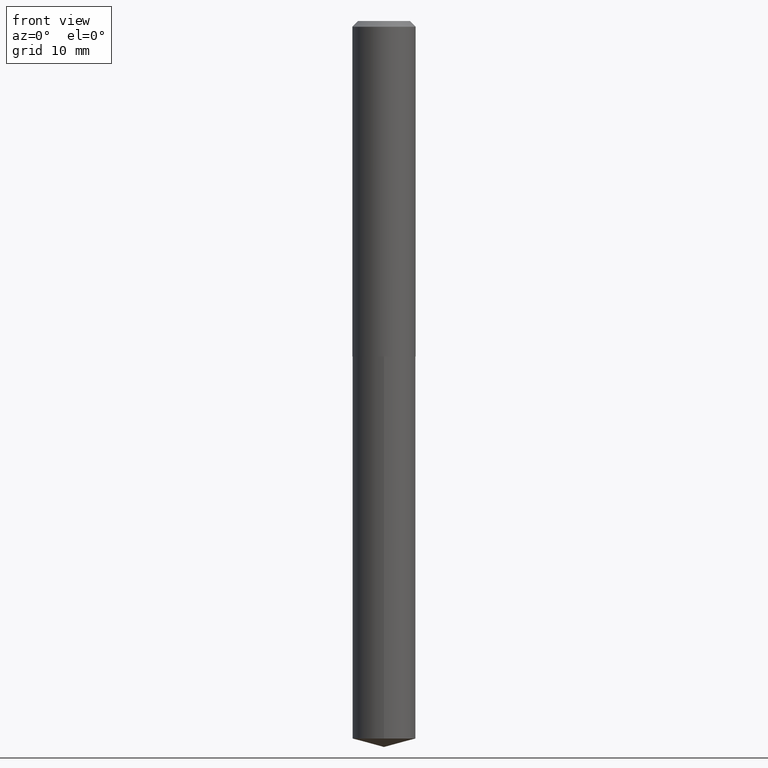
[diagram: clean part render]
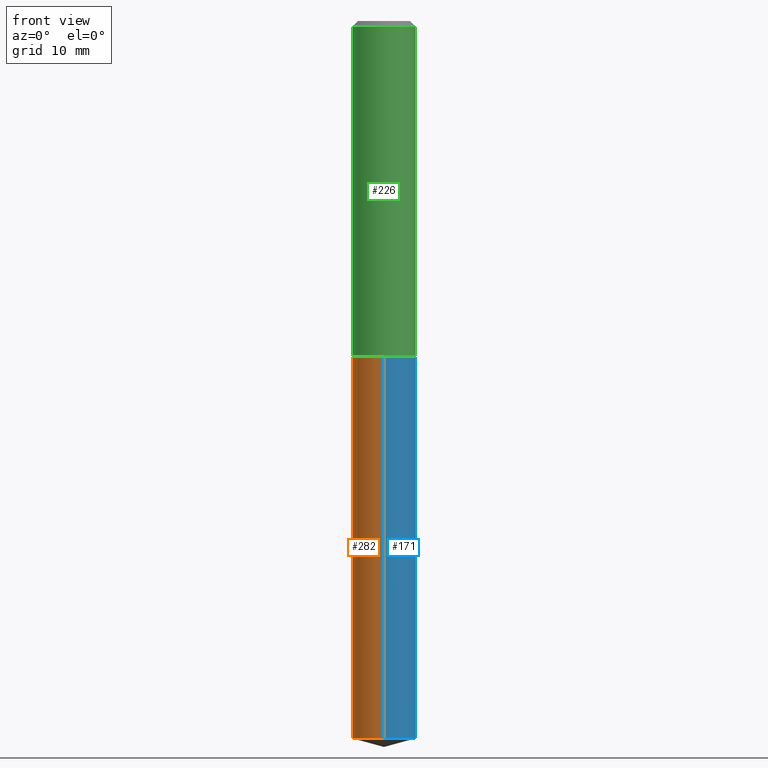
[diagram: same view with three faces highlighted in distinct colors, each labeled with its STEP entity id]
A machine part, front view with three faces highlighted in distinct colors.
Their STEP definitions:

[orange] entity #282 — the highlighted cylindrical surface (edge-blend (fillet) strip) has radius 4.4196 mm, axis along (-0, 0, 1).
#5 = CIRCLE ( 'NONE', #384, 0.1739999999999999880 ) ;
#6 = CARTESIAN_POINT ( 'NONE',  ( 1.236344360222670676E-15, 0.1739999999999935210, -1.848000000000000309 ) ) ;
#7 = LINE ( 'NONE', #128, #267 ) ;
#22 = CARTESIAN_POINT ( 'NONE',  ( 4.519226353830132171E-29, -6.452257514182132781E-15, -1.847999999999999865 ) ) ;
#29 = DIRECTION ( 'NONE',  ( -2.445482700647825692E-29, 3.491461441181750985E-15, 1.000000000000000000 ) ) ;
#55 = CARTESIAN_POINT ( 'NONE',  ( -1.215035505917364906E-15, -0.1740000000000064273, -1.847999999999999199 ) ) ;
#62 = VERTEX_POINT ( 'NONE', #362 ) ;
#64 = DIRECTION ( 'NONE',  ( -2.445482700647825692E-29, 3.491461441181750985E-15, 1.000000000000000000 ) ) ;
#74 = EDGE_LOOP ( 'NONE', ( #361, #185, #200, #327 ) ) ;
#79 = AXIS2_PLACEMENT_3D ( 'NONE', #22, #29, #353 ) ;
#91 = EDGE_CURVE ( 'NONE', #62, #358, #7, .T. ) ;
#100 = CARTESIAN_POINT ( 'NONE',  ( 9.667888995658995842E-29, -1.380309957200424853E-14, -3.953376840516985347 ) ) ;
#110 = LINE ( 'NONE', #298, #354 ) ;
#115 = CARTESIAN_POINT ( 'NONE',  ( -1.215035505917313236E-15, -0.1740000000000137270, -3.953376840516984903 ) ) ;
#128 = CARTESIAN_POINT ( 'NONE',  ( 1.236344360222619006E-15, 0.1739999999999935210, -1.848000000000000309 ) ) ;
#140 = DIRECTION ( 'NONE',  ( -2.445482700647825972E-29, 3.491461441181750985E-15, 1.000000000000000000 ) ) ;
#153 = FACE_OUTER_BOUND ( 'NONE', #74, .T. ) ;
#185 = ORIENTED_EDGE ( 'NONE', *, *, #359, .T. ) ;
#200 = ORIENTED_EDGE ( 'NONE', *, *, #202, .T. ) ;
#202 = EDGE_CURVE ( 'NONE', #218, #288, #110, .T. ) ;
#218 = VERTEX_POINT ( 'NONE', #115 ) ;
#241 = CYLINDRICAL_SURFACE ( 'NONE', #79, 0.1739999999999999880 ) ;
#258 = AXIS2_PLACEMENT_3D ( 'NONE', #100, #64, #339 ) ;
#267 = VECTOR ( 'NONE', #363, 39.37007874015748143 ) ;
#270 = EDGE_CURVE ( 'NONE', #358, #288, #5, .T. ) ;
#282 = ADVANCED_FACE ( 'NONE', ( #153 ), #241, .T. ) ;
#288 = VERTEX_POINT ( 'NONE', #55 ) ;
#298 = CARTESIAN_POINT ( 'NONE',  ( -1.215035505917364906E-15, -0.1740000000000064273, -1.847999999999999199 ) ) ;
#307 = DIRECTION ( 'NONE',  ( -2.445482700647825692E-29, 3.491461441181750985E-15, 1.000000000000000000 ) ) ;
#327 = ORIENTED_EDGE ( 'NONE', *, *, #270, .F. ) ;
#339 = DIRECTION ( 'NONE',  ( -6.982962677686265133E-15, -1.000000000000000000, 3.140055165131337128E-15 ) ) ;
#353 = DIRECTION ( 'NONE',  ( -6.982962677686265133E-15, -1.000000000000000000, 3.140055165131337128E-15 ) ) ;
#354 = VECTOR ( 'NONE', #140, 39.37007874015748143 ) ;
#358 = VERTEX_POINT ( 'NONE', #6 ) ;
#359 = EDGE_CURVE ( 'NONE', #62, #218, #389, .T. ) ;
#361 = ORIENTED_EDGE ( 'NONE', *, *, #91, .F. ) ;
#362 = CARTESIAN_POINT ( 'NONE',  ( 1.236344360222670479E-15, 0.1739999999999861380, -3.953376840516985791 ) ) ;
#363 = DIRECTION ( 'NONE',  ( -2.445482700647825972E-29, 3.491461441181750985E-15, 1.000000000000000000 ) ) ;
#383 = DIRECTION ( 'NONE',  ( -6.982962677686265133E-15, -1.000000000000000000, 3.140055165131337128E-15 ) ) ;
#384 = AXIS2_PLACEMENT_3D ( 'NONE', #387, #307, #383 ) ;
#387 = CARTESIAN_POINT ( 'NONE',  ( 4.519226353830132171E-29, -6.452257514182132781E-15, -1.847999999999999865 ) ) ;
#389 = CIRCLE ( 'NONE', #258, 0.1739999999999999880 ) ;

[blue] entity #171 — the highlighted cylindrical surface (edge-blend (fillet) strip) has radius 4.4196 mm, axis along (-0, 0, 1).
#6 = CARTESIAN_POINT ( 'NONE',  ( 1.236344360222670676E-15, 0.1739999999999935210, -1.848000000000000309 ) ) ;
#7 = LINE ( 'NONE', #128, #267 ) ;
#31 = CIRCLE ( 'NONE', #162, 0.1739999999999999880 ) ;
#42 = FACE_OUTER_BOUND ( 'NONE', #340, .T. ) ;
#44 = DIRECTION ( 'NONE',  ( -6.982962677686265133E-15, -1.000000000000000000, 3.140055165131337128E-15 ) ) ;
#55 = CARTESIAN_POINT ( 'NONE',  ( -1.215035505917364906E-15, -0.1740000000000064273, -1.847999999999999199 ) ) ;
#62 = VERTEX_POINT ( 'NONE', #362 ) ;
#91 = EDGE_CURVE ( 'NONE', #62, #358, #7, .T. ) ;
#92 = ORIENTED_EDGE ( 'NONE', *, *, #138, .F. ) ;
#109 = CARTESIAN_POINT ( 'NONE',  ( 4.519226353830132171E-29, -6.452257514182132781E-15, -1.847999999999999865 ) ) ;
#110 = LINE ( 'NONE', #298, #354 ) ;
#112 = DIRECTION ( 'NONE',  ( -2.445482700647825692E-29, 3.491461441181750985E-15, 1.000000000000000000 ) ) ;
#115 = CARTESIAN_POINT ( 'NONE',  ( -1.215035505917313236E-15, -0.1740000000000137270, -3.953376840516984903 ) ) ;
#116 = EDGE_CURVE ( 'NONE', #218, #62, #31, .T. ) ;
#128 = CARTESIAN_POINT ( 'NONE',  ( 1.236344360222619006E-15, 0.1739999999999935210, -1.848000000000000309 ) ) ;
#138 = EDGE_CURVE ( 'NONE', #288, #358, #186, .T. ) ;
#140 = DIRECTION ( 'NONE',  ( -2.445482700647825972E-29, 3.491461441181750985E-15, 1.000000000000000000 ) ) ;
#143 = AXIS2_PLACEMENT_3D ( 'NONE', #261, #237, #179 ) ;
#156 = ORIENTED_EDGE ( 'NONE', *, *, #202, .F. ) ;
#162 = AXIS2_PLACEMENT_3D ( 'NONE', #165, #112, #44 ) ;
#165 = CARTESIAN_POINT ( 'NONE',  ( 9.667888995658995842E-29, -1.380309957200424853E-14, -3.953376840516985347 ) ) ;
#170 = DIRECTION ( 'NONE',  ( -2.445482700647825692E-29, 3.491461441181750985E-15, 1.000000000000000000 ) ) ;
#171 = ADVANCED_FACE ( 'NONE', ( #42 ), #266, .T. ) ;
#179 = DIRECTION ( 'NONE',  ( -6.982962677686265133E-15, -1.000000000000000000, 3.140055165131337128E-15 ) ) ;
#186 = CIRCLE ( 'NONE', #143, 0.1739999999999999880 ) ;
#202 = EDGE_CURVE ( 'NONE', #218, #288, #110, .T. ) ;
#218 = VERTEX_POINT ( 'NONE', #115 ) ;
#237 = DIRECTION ( 'NONE',  ( -2.445482700647825692E-29, 3.491461441181750985E-15, 1.000000000000000000 ) ) ;
#261 = CARTESIAN_POINT ( 'NONE',  ( 4.519226353830132171E-29, -6.452257514182132781E-15, -1.847999999999999865 ) ) ;
#266 = CYLINDRICAL_SURFACE ( 'NONE', #325, 0.1739999999999999880 ) ;
#267 = VECTOR ( 'NONE', #363, 39.37007874015748143 ) ;
#288 = VERTEX_POINT ( 'NONE', #55 ) ;
#291 = DIRECTION ( 'NONE',  ( -6.982962677686265133E-15, -1.000000000000000000, 3.140055165131337128E-15 ) ) ;
#298 = CARTESIAN_POINT ( 'NONE',  ( -1.215035505917364906E-15, -0.1740000000000064273, -1.847999999999999199 ) ) ;
#325 = AXIS2_PLACEMENT_3D ( 'NONE', #109, #170, #291 ) ;
#330 = ORIENTED_EDGE ( 'NONE', *, *, #91, .T. ) ;
#340 = EDGE_LOOP ( 'NONE', ( #355, #330, #92, #156 ) ) ;
#354 = VECTOR ( 'NONE', #140, 39.37007874015748143 ) ;
#355 = ORIENTED_EDGE ( 'NONE', *, *, #116, .T. ) ;
#358 = VERTEX_POINT ( 'NONE', #6 ) ;
#362 = CARTESIAN_POINT ( 'NONE',  ( 1.236344360222670479E-15, 0.1739999999999861380, -3.953376840516985791 ) ) ;
#363 = DIRECTION ( 'NONE',  ( -2.445482700647825972E-29, 3.491461441181750985E-15, 1.000000000000000000 ) ) ;

[green] entity #226 — the highlighted cylindrical surface (edge-blend (fillet) strip) has radius 4.4196 mm, axis along (-0, 0, 1).
#8 = ORIENTED_EDGE ( 'NONE', *, *, #183, .F. ) ;
#18 = CIRCLE ( 'NONE', #245, 0.1740000000000002101 ) ;
#21 = CARTESIAN_POINT ( 'NONE',  ( 0.000000000000000000, 0.000000000000000000, 0.000000000000000000 ) ) ;
#27 = VERTEX_POINT ( 'NONE', #160 ) ;
#36 = CARTESIAN_POINT ( 'NONE',  ( -0.1740000000000000990, 1.236344360222575027E-15, -8.558947057043541363E-30 ) ) ;
#53 = DIRECTION ( 'NONE',  ( -2.445468806185136597E-29, 3.491481338843145583E-15, 1.000000000000000000 ) ) ;
#60 = EDGE_CURVE ( 'NONE', #182, #27, #127, .T. ) ;
#78 = DIRECTION ( 'NONE',  ( 1.000000000000000000, -6.982962677686267499E-15, 4.876176775795936914E-29 ) ) ;
#83 = FACE_OUTER_BOUND ( 'NONE', #370, .T. ) ;
#86 = VECTOR ( 'NONE', #360, 39.37007874015748143 ) ;
#97 = CARTESIAN_POINT ( 'NONE',  ( 0.1740000000000002101, -7.665547279430124304E-15, -1.847499999999999920 ) ) ;
#102 = VERTEX_POINT ( 'NONE', #97 ) ;
#113 = AXIS2_PLACEMENT_3D ( 'NONE', #320, #53, #117 ) ;
#117 = DIRECTION ( 'NONE',  ( 1.000000000000000000, -6.982962677686266711E-15, 0.000000000000000000 ) ) ;
#120 = CARTESIAN_POINT ( 'NONE',  ( 4.518003619427039369E-29, -6.450511773512711278E-15, -1.847499999999999920 ) ) ;
#127 = LINE ( 'NONE', #36, #286 ) ;
#130 = AXIS2_PLACEMENT_3D ( 'NONE', #21, #348, #78 ) ;
#131 = DIRECTION ( 'NONE',  ( -2.445468806185136877E-29, 3.491481338843145188E-15, 1.000000000000000000 ) ) ;
#134 = ORIENTED_EDGE ( 'NONE', *, *, #276, .T. ) ;
#160 = CARTESIAN_POINT ( 'NONE',  ( -0.1739999999999999880, -2.043465922453203979E-15, -0.03125000000000020817 ) ) ;
#161 = DIRECTION ( 'NONE',  ( -2.445468806185136597E-29, 3.491481338843145583E-15, 1.000000000000000000 ) ) ;
#182 = VERTEX_POINT ( 'NONE', #322 ) ;
#183 = EDGE_CURVE ( 'NONE', #27, #193, #199, .T. ) ;
#193 = VERTEX_POINT ( 'NONE', #377 ) ;
#199 = CIRCLE ( 'NONE', #113, 0.1739999999999999880 ) ;
#201 = ORIENTED_EDGE ( 'NONE', *, *, #60, .F. ) ;
#217 = CARTESIAN_POINT ( 'NONE',  ( 0.1740000000000000990, -1.215035505917411252E-15, 8.484547589884934838E-30 ) ) ;
#226 = ADVANCED_FACE ( 'NONE', ( #83 ), #236, .T. ) ;
#236 = CYLINDRICAL_SURFACE ( 'NONE', #130, 0.1740000000000000990 ) ;
#245 = AXIS2_PLACEMENT_3D ( 'NONE', #120, #161, #390 ) ;
#253 = ORIENTED_EDGE ( 'NONE', *, *, #324, .T. ) ;
#276 = EDGE_CURVE ( 'NONE', #102, #193, #328, .T. ) ;
#286 = VECTOR ( 'NONE', #131, 39.37007874015748143 ) ;
#320 = CARTESIAN_POINT ( 'NONE',  ( 7.642090019328602662E-31, -1.091087918388490267E-16, -0.03125000000000020817 ) ) ;
#322 = CARTESIAN_POINT ( 'NONE',  ( -0.1740000000000002101, -5.214167413290135067E-15, -1.847499999999999920 ) ) ;
#324 = EDGE_CURVE ( 'NONE', #182, #102, #18, .T. ) ;
#328 = LINE ( 'NONE', #217, #86 ) ;
#348 = DIRECTION ( 'NONE',  ( -2.445468806185136597E-29, 3.491481338843145583E-15, 1.000000000000000000 ) ) ;
#360 = DIRECTION ( 'NONE',  ( -2.445468806185136877E-29, 3.491481338843145188E-15, 1.000000000000000000 ) ) ;
#370 = EDGE_LOOP ( 'NONE', ( #201, #253, #134, #8 ) ) ;
#377 = CARTESIAN_POINT ( 'NONE',  ( 0.1739999999999999880, -1.324144297756259366E-15, -0.03125000000000020817 ) ) ;
#390 = DIRECTION ( 'NONE',  ( 1.000000000000000000, -6.982962677686269077E-15, 0.000000000000000000 ) ) ;